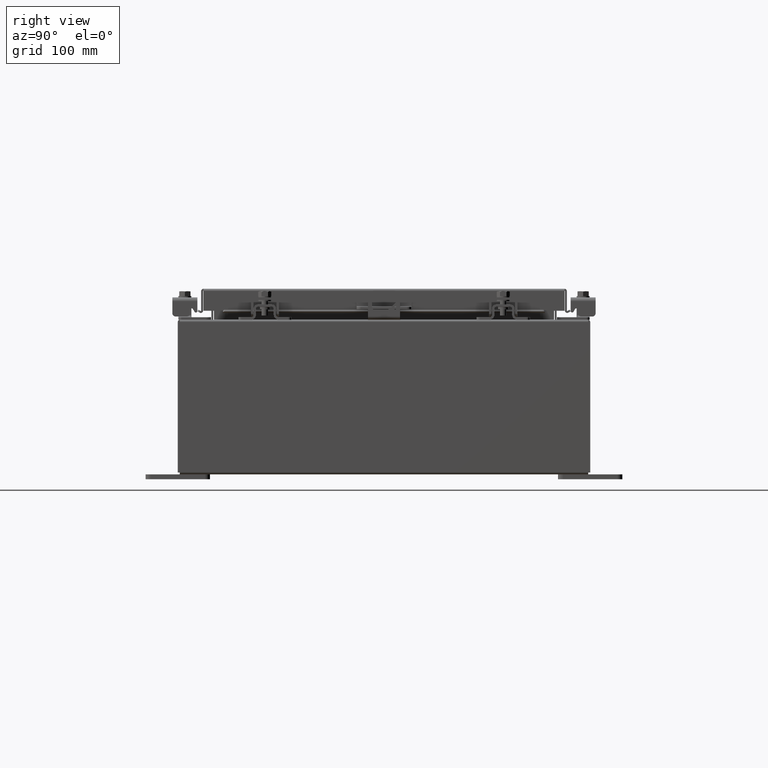
[diagram: clean part render]
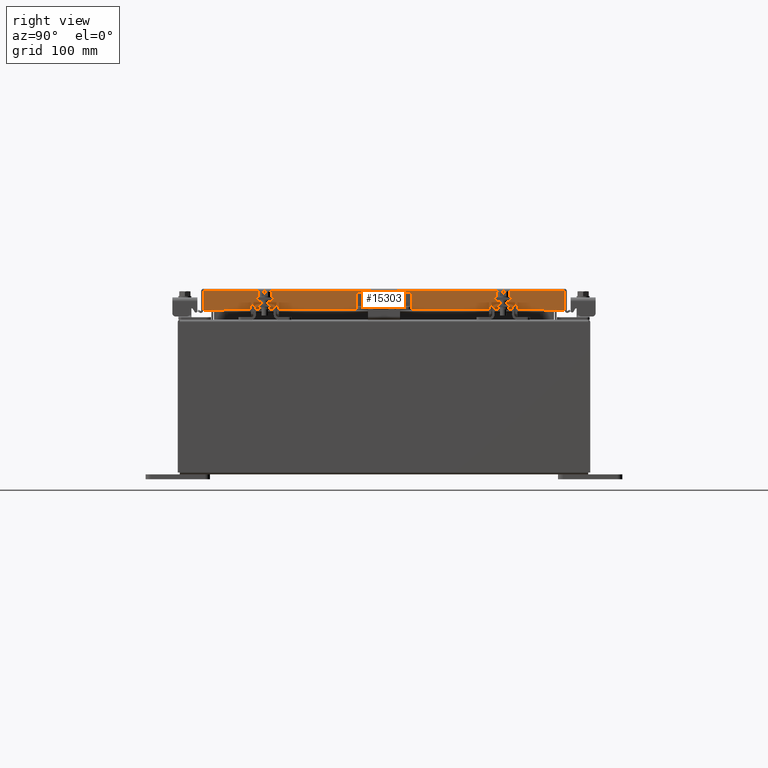
[diagram: same view with one face highlighted and labeled with its STEP entity id]
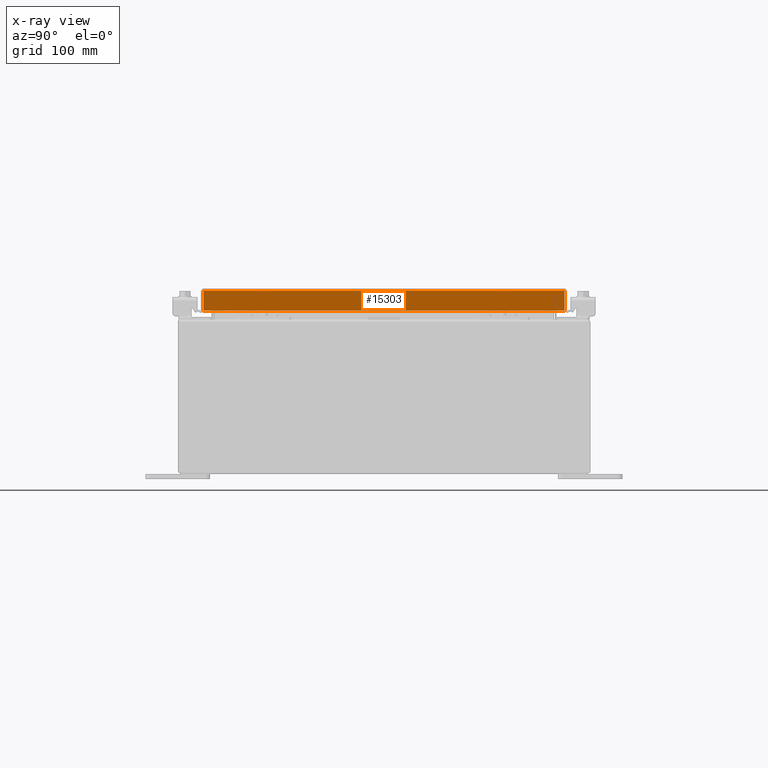
[diagram: x-ray of the same camera — body ghosted, the highlighted face saturated]
A machine part, right view. The second image highlights one B-rep face of the part: STEP entity #15303.
The next image is the same camera in x-ray: the body ghosted, the highlighted face saturated — about 0% of this face is hidden behind the body in this view.
In plain terms, the highlighted planar face has unit normal (1, 0, 0).
Its self-contained STEP definition (entity closure, byte-faithful):
#86 = VECTOR ( 'NONE', #3928, 39.37007874015748100 ) ;
#441 = DIRECTION ( 'NONE',  ( -2.818880942772360100E-015, -6.982962677686267500E-015, 1.000000000000000000 ) ) ;
#529 = CARTESIAN_POINT ( 'NONE',  ( 9.077999999999999400, 7.005157864376268900, -0.08770000000000061100 ) ) ;
#1271 = CARTESIAN_POINT ( 'NONE',  ( 9.077999999999999400, -7.005157864376268900, -0.07469999999999978000 ) ) ;
#1786 = VERTEX_POINT ( 'NONE', #15572 ) ;
#2792 = CARTESIAN_POINT ( 'NONE',  ( 9.077999999999999400, 6.754526897220979400E-018, -0.08770000000000061100 ) ) ;
#2931 = VERTEX_POINT ( 'NONE', #18404 ) ;
#3300 = ORIENTED_EDGE ( 'NONE', *, *, #19171, .F. ) ;
#3779 = LINE ( 'NONE', #8424, #8468 ) ;
#3928 = DIRECTION ( 'NONE',  ( 0.0000000000000000000, -1.000000000000000000, 0.0000000000000000000 ) ) ;
#4091 = AXIS2_PLACEMENT_3D ( 'NONE', #21269, #23309, #11239 ) ;
#4255 = CARTESIAN_POINT ( 'NONE',  ( 9.078000000000001200, -7.093999999999999400, -0.8499999999999996400 ) ) ;
#5782 = VERTEX_POINT ( 'NONE', #15528 ) ;
#6713 = VERTEX_POINT ( 'NONE', #9935 ) ;
#7184 = PLANE ( 'NONE',  #4091 ) ;
#7339 = ORIENTED_EDGE ( 'NONE', *, *, #23768, .F. ) ;
#7367 = VECTOR ( 'NONE', #16846, 39.37007874015748100 ) ;
#7639 = DIRECTION ( 'NONE',  ( 0.0000000000000000000, -1.000000000000000000, 0.0000000000000000000 ) ) ;
#7860 = ORIENTED_EDGE ( 'NONE', *, *, #15105, .T. ) ;
#8264 = DIRECTION ( 'NONE',  ( 0.0000000000000000000, -1.000000000000000000, 0.0000000000000000000 ) ) ;
#8424 = CARTESIAN_POINT ( 'NONE',  ( 9.077999999999999400, 7.005157864376269700, 7.476737077273898600E-014 ) ) ;
#8438 = CARTESIAN_POINT ( 'NONE',  ( 9.077999999999999400, -7.005157864376268900, -0.08770000000000115200 ) ) ;
#8468 = VECTOR ( 'NONE', #441, 39.37007874015748100 ) ;
#8625 = VECTOR ( 'NONE', #8264, 39.37007874015748100 ) ;
#9073 = VECTOR ( 'NONE', #25469, 39.37007874015748100 ) ;
#9157 = EDGE_CURVE ( 'NONE', #2931, #14406, #3779, .T. ) ;
#9727 = LINE ( 'NONE', #1271, #9073 ) ;
#9900 = CARTESIAN_POINT ( 'NONE',  ( 9.077999999999995900, 6.255157864376273300, -0.8500000000000000900 ) ) ;
#9935 = CARTESIAN_POINT ( 'NONE',  ( 9.077999999999995900, 6.255157864376272400, -0.8500000000000000900 ) ) ;
#10804 = LINE ( 'NONE', #9900, #86 ) ;
#11239 = DIRECTION ( 'NONE',  ( 2.818880942772360100E-015, 0.0000000000000000000, -1.000000000000000000 ) ) ;
#11998 = VERTEX_POINT ( 'NONE', #8438 ) ;
#12388 = VECTOR ( 'NONE', #7639, 39.37007874015748100 ) ;
#14406 = VERTEX_POINT ( 'NONE', #529 ) ;
#15105 = EDGE_CURVE ( 'NONE', #14406, #11998, #17423, .T. ) ;
#15303 = ADVANCED_FACE ( 'NONE', ( #18988 ), #7184, .T. ) ;
#15528 = CARTESIAN_POINT ( 'NONE',  ( 9.077999999999995900, -6.255157864376262600, -0.8500000000000000900 ) ) ;
#15572 = CARTESIAN_POINT ( 'NONE',  ( 9.078000000000001200, -7.005157864376262600, -0.8499999999999996400 ) ) ;
#16846 = DIRECTION ( 'NONE',  ( 2.171061248348209200E-031, -1.000000000000000000, -7.701855070945201600E-017 ) ) ;
#16881 = EDGE_CURVE ( 'NONE', #6713, #5782, #10804, .T. ) ;
#17423 = LINE ( 'NONE', #2792, #7367 ) ;
#18404 = CARTESIAN_POINT ( 'NONE',  ( 9.078000000000001200, 7.005157864376274200, -0.8499999999999996400 ) ) ;
#18988 = FACE_OUTER_BOUND ( 'NONE', #21526, .T. ) ;
#19171 = EDGE_CURVE ( 'NONE', #1786, #11998, #9727, .T. ) ;
#21116 = ORIENTED_EDGE ( 'NONE', *, *, #9157, .T. ) ;
#21155 = ORIENTED_EDGE ( 'NONE', *, *, #22154, .F. ) ;
#21269 = CARTESIAN_POINT ( 'NONE',  ( 9.077999999999999400, 0.0000000000000000000, 2.585061485449906600E-014 ) ) ;
#21526 = EDGE_LOOP ( 'NONE', ( #3300, #21155, #26117, #7339, #21116, #7860 ) ) ;
#21736 = CARTESIAN_POINT ( 'NONE',  ( 9.078000000000001200, -7.093999999999999400, -0.8499999999999996400 ) ) ;
#22154 = EDGE_CURVE ( 'NONE', #5782, #1786, #24112, .T. ) ;
#23309 = DIRECTION ( 'NONE',  ( 1.000000000000000000, 0.0000000000000000000, 2.818880942772360100E-015 ) ) ;
#23768 = EDGE_CURVE ( 'NONE', #2931, #6713, #25966, .T. ) ;
#24112 = LINE ( 'NONE', #4255, #8625 ) ;
#25469 = DIRECTION ( 'NONE',  ( -2.818880942772360100E-015, -6.982962677686267500E-015, 1.000000000000000000 ) ) ;
#25966 = LINE ( 'NONE', #21736, #12388 ) ;
#26117 = ORIENTED_EDGE ( 'NONE', *, *, #16881, .F. ) ;